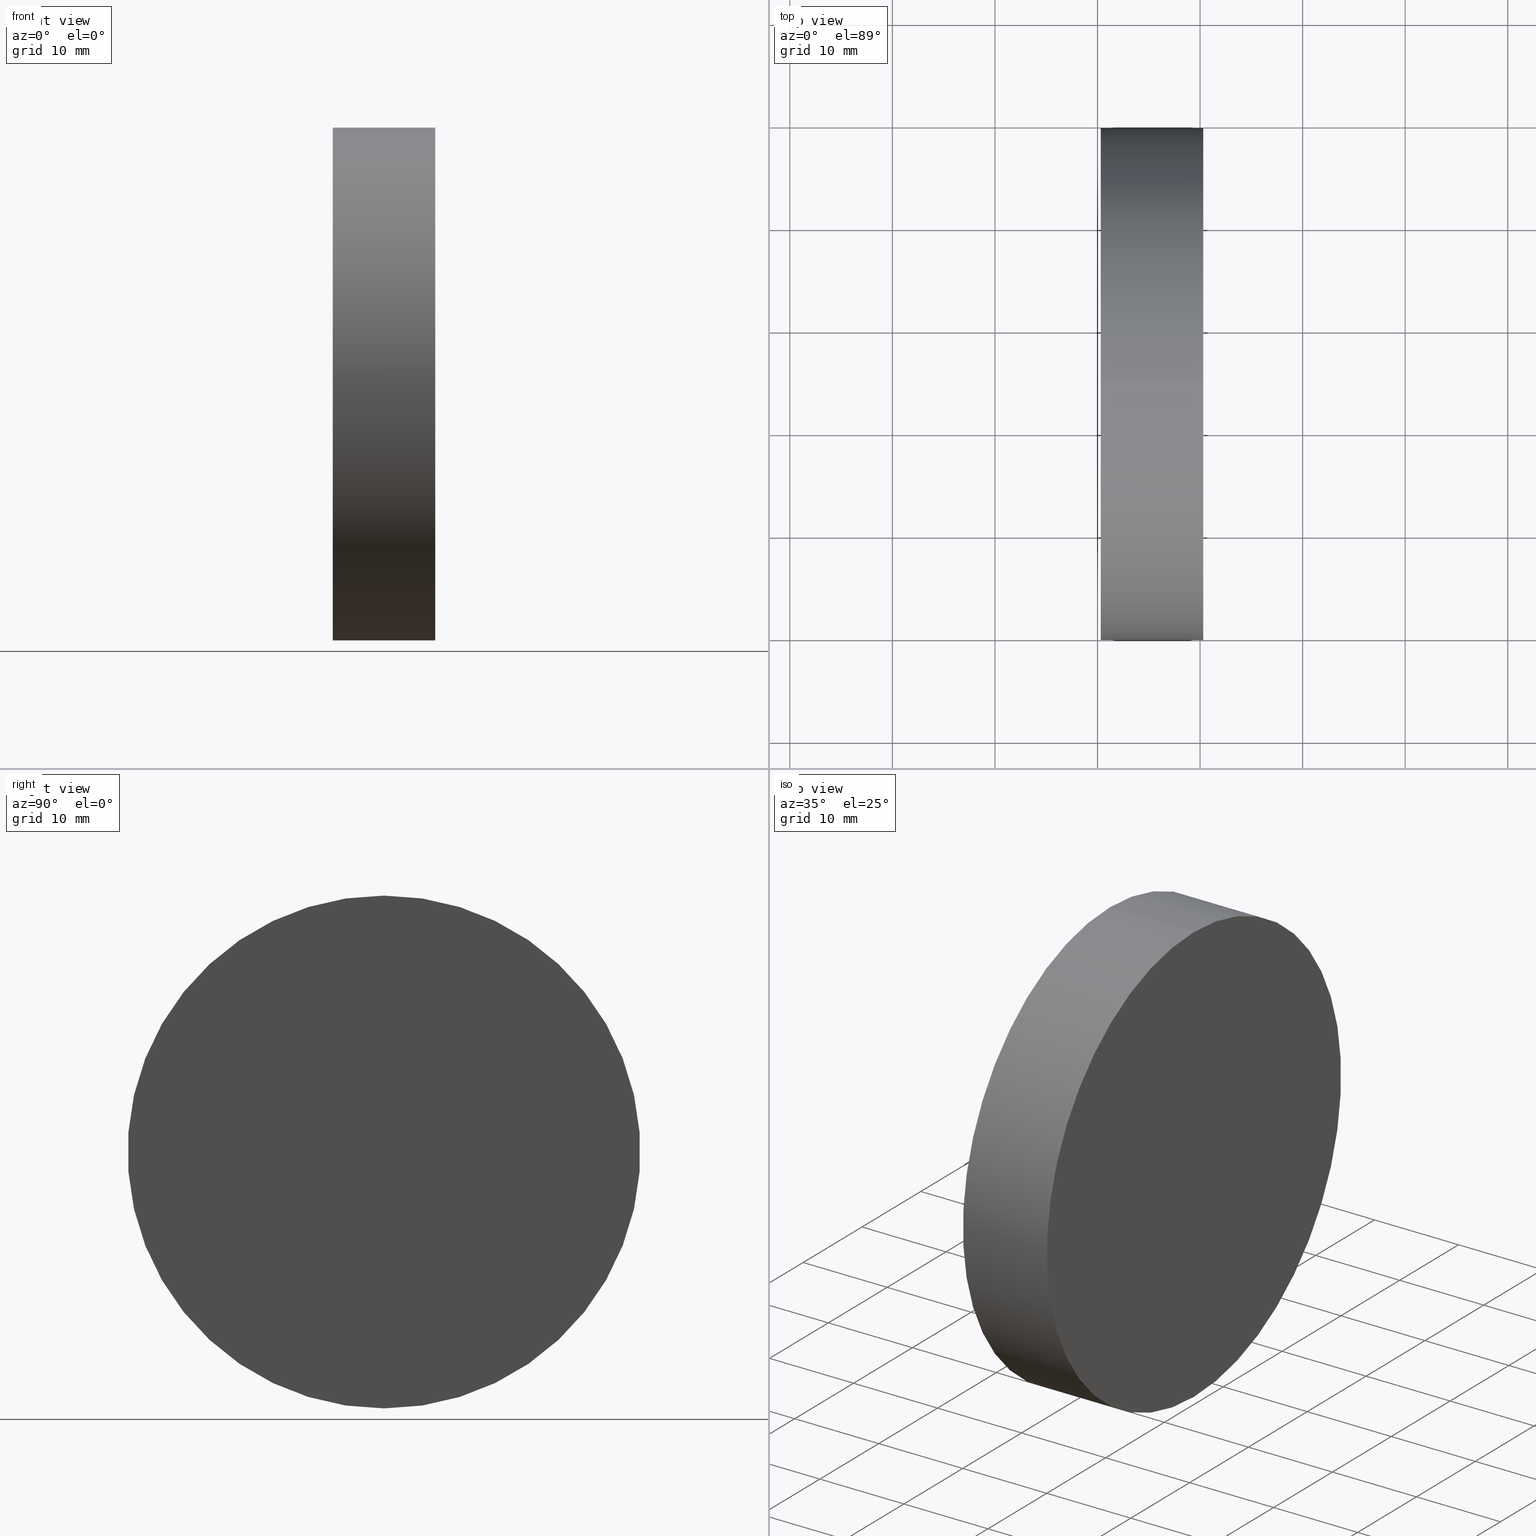
[diagram: canonical four-view strip — front | top / right | iso, engineering-drawing reading convention]
A machine part, canonical four-view strip (front | top / right | iso — engineering-drawing reading convention). The complete STEP part file that produces these views, byte-faithful:
ISO-10303-21;
HEADER;
FILE_DESCRIPTION (( 'STEP AP214' ),
    '1' );
FILE_NAME ('430016.STEP',
    '2019-08-22T05:52:30',
    ( '' ),
    ( '' ),
    'SwSTEP 2.0',
    'SolidWorks 2016',
    '' );
FILE_SCHEMA (( 'AUTOMOTIVE_DESIGN' ));
ENDSEC;

DATA;
#1 = SURFACE_STYLE_USAGE ( .BOTH. , #47 ) ;
#2 = ORIENTED_EDGE ( 'NONE', *, *, #122, .F. ) ;
#3 = MECHANICAL_DESIGN_GEOMETRIC_PRESENTATION_REPRESENTATION (  '', ( #77 ), #54 ) ;
#4 = FACE_OUTER_BOUND ( 'NONE', #31, .T. ) ;
#5 = DIRECTION ( 'NONE',  ( -1.000000000000000000, -0.0000000000000000000, -0.0000000000000000000 ) ) ;
#6 = AXIS2_PLACEMENT_3D ( 'NONE', #86, #25, #34 ) ;
#7 = ORIENTED_EDGE ( 'NONE', *, *, #51, .F. ) ;
#8 = PRODUCT_CONTEXT ( 'NONE', #107, 'mechanical' ) ;
#9 = FACE_OUTER_BOUND ( 'NONE', #121, .T. ) ;
#10 =( LENGTH_UNIT ( ) NAMED_UNIT ( * ) SI_UNIT ( .MILLI., .METRE. ) );
#11 = MANIFOLD_SOLID_BREP ( '��ת1', #112 ) ;
#12 = CARTESIAN_POINT ( 'NONE',  ( 508.0016039852320700, 154.5863586980308400, 0.0000000000000000000 ) ) ;
#13 = DIRECTION ( 'NONE',  ( -1.000000000000000000, -0.0000000000000000000, -0.0000000000000000000 ) ) ;
#14 = PLANE ( 'NONE',  #113 ) ;
#15 = PRESENTATION_STYLE_ASSIGNMENT (( #1 ) ) ;
#16 = FILL_AREA_STYLE ('',( #72 ) ) ;
#17 =( NAMED_UNIT ( * ) PLANE_ANGLE_UNIT ( ) SI_UNIT ( $, .RADIAN. ) );
#18 =( LENGTH_UNIT ( ) NAMED_UNIT ( * ) SI_UNIT ( .MILLI., .METRE. ) );
#19 = SURFACE_STYLE_USAGE ( .BOTH. , #98 ) ;
#20 = ORIENTED_EDGE ( 'NONE', *, *, #70, .F. ) ;
#21 = AXIS2_PLACEMENT_3D ( 'NONE', #12, #49, #85 ) ;
#22 = UNCERTAINTY_MEASURE_WITH_UNIT (LENGTH_MEASURE( 1.000000000000000100E-005 ), #18, 'distance_accuracy_value', 'NONE');
#23 =( NAMED_UNIT ( * ) SI_UNIT ( $, .STERADIAN. ) SOLID_ANGLE_UNIT ( ) );
#24 = ORIENTED_EDGE ( 'NONE', *, *, #122, .T. ) ;
#25 = DIRECTION ( 'NONE',  ( -1.000000000000000000, -0.0000000000000000000, -0.0000000000000000000 ) ) ;
#26 = COLOUR_RGB ( '',1.000000000000000000, 1.000000000000000000, 1.000000000000000000 ) ;
#27 = CARTESIAN_POINT ( 'NONE',  ( 530.3142809851219700, 154.5863586980308100, 0.0000000000000000000 ) ) ;
#28 = DIRECTION ( 'NONE',  ( 0.0000000000000000000, 0.0000000000000000000, 1.000000000000000000 ) ) ;
#29 =( NAMED_UNIT ( * ) SI_UNIT ( $, .STERADIAN. ) SOLID_ANGLE_UNIT ( ) );
#30 = CIRCLE ( 'NONE', #84, 24.99999999999996800 ) ;
#31 = EDGE_LOOP ( 'NONE', ( #87, #90, #53, #55 ) ) ;
#32 = CIRCLE ( 'NONE', #60, 24.99999999999996800 ) ;
#33 = PRESENTATION_LAYER_ASSIGNMENT (  '', '', ( #77 ) ) ;
#34 = DIRECTION ( 'NONE',  ( 0.0000000000000000000, 0.0000000000000000000, 1.000000000000000000 ) ) ;
#35 = EDGE_CURVE ( 'NONE', #128, #88, #30, .T. ) ;
#36 = DIRECTION ( 'NONE',  ( -1.000000000000000000, 0.0000000000000000000, -0.0000000000000000000 ) ) ;
#37 = DIRECTION ( 'NONE',  ( 0.0000000000000000000, 0.0000000000000000000, -1.000000000000000000 ) ) ;
#38 = ORIENTED_EDGE ( 'NONE', *, *, #46, .T. ) ;
#39 = CARTESIAN_POINT ( 'NONE',  ( 530.3142809851219700, 154.5863586980308400, 0.0000000000000000000 ) ) ;
#40 = DIRECTION ( 'NONE',  ( 1.000000000000000000, 0.0000000000000000000, 0.0000000000000000000 ) ) ;
#41 = APPLICATION_PROTOCOL_DEFINITION ( 'draft international standard', 'automotive_design', 1998, #107 ) ;
#42 = COLOUR_RGB ( '',1.000000000000000000, 1.000000000000000000, 1.000000000000000000 ) ;
#43 = VERTEX_POINT ( 'NONE', #66 ) ;
#44 = PRODUCT_DEFINITION_CONTEXT ( 'detailed design', #117, 'design' ) ;
#45 = PRESENTATION_STYLE_ASSIGNMENT (( #19 ) ) ;
#46 = EDGE_CURVE ( 'NONE', #88, #106, #134, .T. ) ;
#47 = SURFACE_SIDE_STYLE ('',( #111 ) ) ;
#48 = ADVANCED_BREP_SHAPE_REPRESENTATION ( '430016', ( #11, #80 ), #127 ) ;
#49 = DIRECTION ( 'NONE',  ( -1.000000000000000000, -0.0000000000000000000, -0.0000000000000000000 ) ) ;
#50 = CYLINDRICAL_SURFACE ( 'NONE', #21, 24.99999999999996800 ) ;
#51 = EDGE_CURVE ( 'NONE', #88, #128, #61, .T. ) ;
#52 = DIRECTION ( 'NONE',  ( -1.000000000000000000, -0.0000000000000000000, -0.0000000000000000000 ) ) ;
#53 = ORIENTED_EDGE ( 'NONE', *, *, #58, .F. ) ;
#54 =( GEOMETRIC_REPRESENTATION_CONTEXT ( 3 ) GLOBAL_UNCERTAINTY_ASSIGNED_CONTEXT ( ( #22 ) ) GLOBAL_UNIT_ASSIGNED_CONTEXT ( ( #18, #139, #108 ) ) REPRESENTATION_CONTEXT ( 'NONE', 'WORKASPACE' ) );
#55 = ORIENTED_EDGE ( 'NONE', *, *, #46, .F. ) ;
#56 = LINE ( 'NONE', #67, #109 ) ;
#57 = CARTESIAN_POINT ( 'NONE',  ( 508.0016039852320700, 154.5863586980308400, 0.0000000000000000000 ) ) ;
#58 = EDGE_CURVE ( 'NONE', #106, #43, #32, .T. ) ;
#59 = DIRECTION ( 'NONE',  ( -1.000000000000000000, -0.0000000000000000000, -0.0000000000000000000 ) ) ;
#60 = AXIS2_PLACEMENT_3D ( 'NONE', #103, #59, #28 ) ;
#61 = CIRCLE ( 'NONE', #132, 24.99999999999996800 ) ;
#62 = EDGE_LOOP ( 'NONE', ( #20, #118, #38, #2 ) ) ;
#63 = PRESENTATION_LAYER_ASSIGNMENT (  '', '', ( #124 ) ) ;
#64 = ADVANCED_FACE ( 'NONE', ( #120 ), #14, .F. ) ;
#65 = EDGE_LOOP ( 'NONE', ( #92, #24 ) ) ;
#66 = CARTESIAN_POINT ( 'NONE',  ( 520.3142809851219700, 154.5863586980308400, -24.99999999999996800 ) ) ;
#67 = CARTESIAN_POINT ( 'NONE',  ( 508.0016039852320700, 154.5863586980308400, -24.99999999999996800 ) ) ;
#68 = DIRECTION ( 'NONE',  ( -0.0000000000000000000, 0.0000000000000000000, 1.000000000000000000 ) ) ;
#69 = DIRECTION ( 'NONE',  ( -1.000000000000000000, -0.0000000000000000000, -0.0000000000000000000 ) ) ;
#70 = EDGE_CURVE ( 'NONE', #128, #43, #56, .T. ) ;
#71 =( LENGTH_UNIT ( ) NAMED_UNIT ( * ) SI_UNIT ( .MILLI., .METRE. ) );
#72 = FILL_AREA_STYLE_COLOUR ( '', #42 ) ;
#73 = CYLINDRICAL_SURFACE ( 'NONE', #101, 24.99999999999996800 ) ;
#74 =( GEOMETRIC_REPRESENTATION_CONTEXT ( 3 ) GLOBAL_UNCERTAINTY_ASSIGNED_CONTEXT ( ( #136 ) ) GLOBAL_UNIT_ASSIGNED_CONTEXT ( ( #10, #91, #23 ) ) REPRESENTATION_CONTEXT ( 'NONE', 'WORKASPACE' ) );
#75 = ORIENTED_EDGE ( 'NONE', *, *, #35, .F. ) ;
#76 = SHAPE_DEFINITION_REPRESENTATION ( #82, #48 ) ;
#77 = STYLED_ITEM ( 'NONE', ( #45 ), #48 ) ;
#78 = ADVANCED_FACE ( 'NONE', ( #4 ), #50, .T. ) ;
#79 = FACE_OUTER_BOUND ( 'NONE', #62, .T. ) ;
#80 = AXIS2_PLACEMENT_3D ( 'NONE', #126, #105, #40 ) ;
#81 = FILL_AREA_STYLE_COLOUR ( '', #26 ) ;
#82 = PRODUCT_DEFINITION_SHAPE ( 'NONE', 'NONE',  #97 ) ;
#83 = DIRECTION ( 'NONE',  ( 1.000000000000000000, 0.0000000000000000000, 0.0000000000000000000 ) ) ;
#84 = AXIS2_PLACEMENT_3D ( 'NONE', #39, #5, #104 ) ;
#85 = DIRECTION ( 'NONE',  ( 0.0000000000000000000, 0.0000000000000000000, 1.000000000000000000 ) ) ;
#86 = CARTESIAN_POINT ( 'NONE',  ( 520.3142809851219700, 154.5863586980308400, 0.0000000000000000000 ) ) ;
#87 = ORIENTED_EDGE ( 'NONE', *, *, #51, .T. ) ;
#88 = VERTEX_POINT ( 'NONE', #125 ) ;
#89 = MECHANICAL_DESIGN_GEOMETRIC_PRESENTATION_REPRESENTATION (  '', ( #124 ), #74 ) ;
#90 = ORIENTED_EDGE ( 'NONE', *, *, #70, .T. ) ;
#91 =( NAMED_UNIT ( * ) PLANE_ANGLE_UNIT ( ) SI_UNIT ( $, .RADIAN. ) );
#92 = ORIENTED_EDGE ( 'NONE', *, *, #58, .T. ) ;
#93 = PRODUCT_DEFINITION_FORMATION_WITH_SPECIFIED_SOURCE ( '�κ�', '', #100, .NOT_KNOWN. ) ;
#94 = VECTOR ( 'NONE', #52, 1000.000000000000000 ) ;
#95 = PLANE ( 'NONE',  #99 ) ;
#96 = CARTESIAN_POINT ( 'NONE',  ( 520.3142809851219700, 154.5863586980308100, 0.0000000000000000000 ) ) ;
#97 = PRODUCT_DEFINITION ( 'δ֪', '', #93, #44 ) ;
#98 = SURFACE_SIDE_STYLE ('',( #123 ) ) ;
#99 = AXIS2_PLACEMENT_3D ( 'NONE', #27, #36, #68 ) ;
#100 = PRODUCT ( '430016', '430016', '', ( #8 ) ) ;
#101 = AXIS2_PLACEMENT_3D ( 'NONE', #57, #69, #115 ) ;
#102 = CARTESIAN_POINT ( 'NONE',  ( 520.3142809851219700, 154.5863586980308400, 24.99999999999996800 ) ) ;
#103 = CARTESIAN_POINT ( 'NONE',  ( 520.3142809851219700, 154.5863586980308400, 0.0000000000000000000 ) ) ;
#104 = DIRECTION ( 'NONE',  ( 0.0000000000000000000, 0.0000000000000000000, 1.000000000000000000 ) ) ;
#105 = DIRECTION ( 'NONE',  ( 0.0000000000000000000, 0.0000000000000000000, 1.000000000000000000 ) ) ;
#106 = VERTEX_POINT ( 'NONE', #102 ) ;
#107 = APPLICATION_CONTEXT ( 'automotive_design' ) ;
#108 =( NAMED_UNIT ( * ) SI_UNIT ( $, .STERADIAN. ) SOLID_ANGLE_UNIT ( ) );
#109 = VECTOR ( 'NONE', #116, 1000.000000000000000 ) ;
#110 = PRODUCT_RELATED_PRODUCT_CATEGORY ( 'part', '', ( #100 ) ) ;
#111 = SURFACE_STYLE_FILL_AREA ( #133 ) ;
#112 = CLOSED_SHELL ( 'NONE', ( #78, #131, #140, #64 ) ) ;
#113 = AXIS2_PLACEMENT_3D ( 'NONE', #96, #83, #37 ) ;
#114 = CIRCLE ( 'NONE', #6, 24.99999999999996800 ) ;
#115 = DIRECTION ( 'NONE',  ( 0.0000000000000000000, 0.0000000000000000000, 1.000000000000000000 ) ) ;
#116 = DIRECTION ( 'NONE',  ( -1.000000000000000000, -0.0000000000000000000, -0.0000000000000000000 ) ) ;
#117 = APPLICATION_CONTEXT ( 'automotive_design' ) ;
#118 = ORIENTED_EDGE ( 'NONE', *, *, #35, .T. ) ;
#119 = CARTESIAN_POINT ( 'NONE',  ( 530.3142809851219700, 154.5863586980308400, 0.0000000000000000000 ) ) ;
#120 = FACE_OUTER_BOUND ( 'NONE', #65, .T. ) ;
#121 = EDGE_LOOP ( 'NONE', ( #7, #75 ) ) ;
#122 = EDGE_CURVE ( 'NONE', #43, #106, #114, .T. ) ;
#123 = SURFACE_STYLE_FILL_AREA ( #16 ) ;
#124 = STYLED_ITEM ( 'NONE', ( #15 ), #11 ) ;
#125 = CARTESIAN_POINT ( 'NONE',  ( 530.3142809851219700, 154.5863586980308400, 24.99999999999996800 ) ) ;
#126 = CARTESIAN_POINT ( 'NONE',  ( 0.0000000000000000000, 0.0000000000000000000, 0.0000000000000000000 ) ) ;
#127 =( GEOMETRIC_REPRESENTATION_CONTEXT ( 3 ) GLOBAL_UNCERTAINTY_ASSIGNED_CONTEXT ( ( #130 ) ) GLOBAL_UNIT_ASSIGNED_CONTEXT ( ( #71, #17, #29 ) ) REPRESENTATION_CONTEXT ( 'NONE', 'WORKASPACE' ) );
#128 = VERTEX_POINT ( 'NONE', #138 ) ;
#129 = APPLICATION_PROTOCOL_DEFINITION ( 'draft international standard', 'automotive_design', 1998, #117 ) ;
#130 = UNCERTAINTY_MEASURE_WITH_UNIT (LENGTH_MEASURE( 1.000000000000000100E-005 ), #71, 'distance_accuracy_value', 'NONE');
#131 = ADVANCED_FACE ( 'NONE', ( #9 ), #95, .F. ) ;
#132 = AXIS2_PLACEMENT_3D ( 'NONE', #119, #13, #137 ) ;
#133 = FILL_AREA_STYLE ('',( #81 ) ) ;
#134 = LINE ( 'NONE', #135, #94 ) ;
#135 = CARTESIAN_POINT ( 'NONE',  ( 508.0016039852320700, 154.5863586980308400, 24.99999999999996800 ) ) ;
#136 = UNCERTAINTY_MEASURE_WITH_UNIT (LENGTH_MEASURE( 1.000000000000000100E-005 ), #10, 'distance_accuracy_value', 'NONE');
#137 = DIRECTION ( 'NONE',  ( 0.0000000000000000000, 0.0000000000000000000, 1.000000000000000000 ) ) ;
#138 = CARTESIAN_POINT ( 'NONE',  ( 530.3142809851219700, 154.5863586980308400, -24.99999999999996800 ) ) ;
#139 =( NAMED_UNIT ( * ) PLANE_ANGLE_UNIT ( ) SI_UNIT ( $, .RADIAN. ) );
#140 = ADVANCED_FACE ( 'NONE', ( #79 ), #73, .T. ) ;
ENDSEC;
END-ISO-10303-21;
